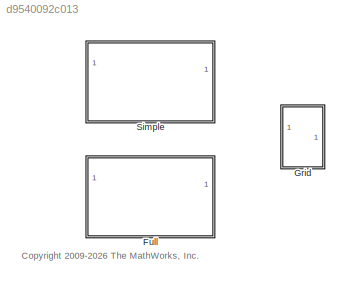
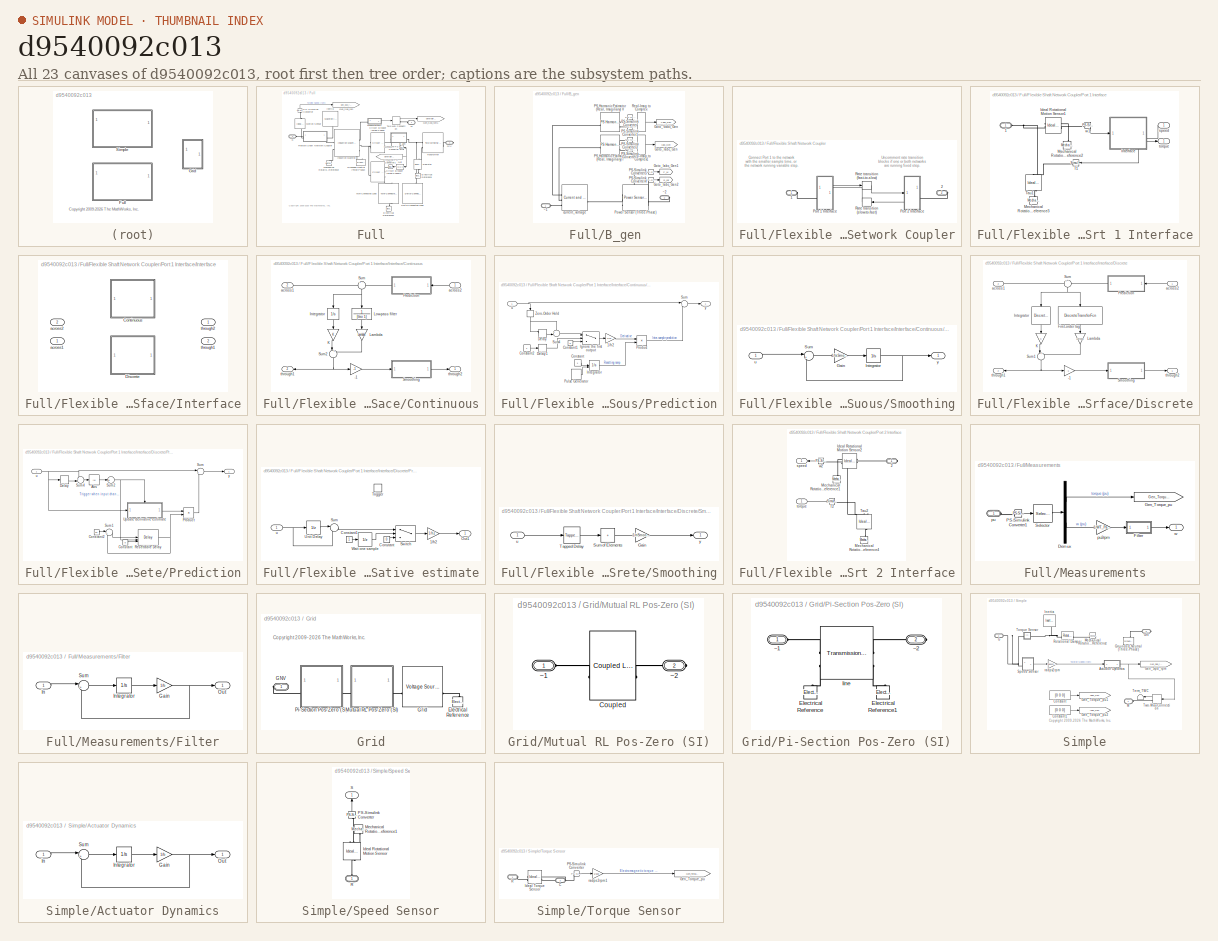
[diagram: thumbnail index - all 23 canvases of the model, root first then tree order]
MODEL slx_d9540092c013
KIND library
CONFIG EnableMultiTasking = on
CONFIG SolverName = ode45
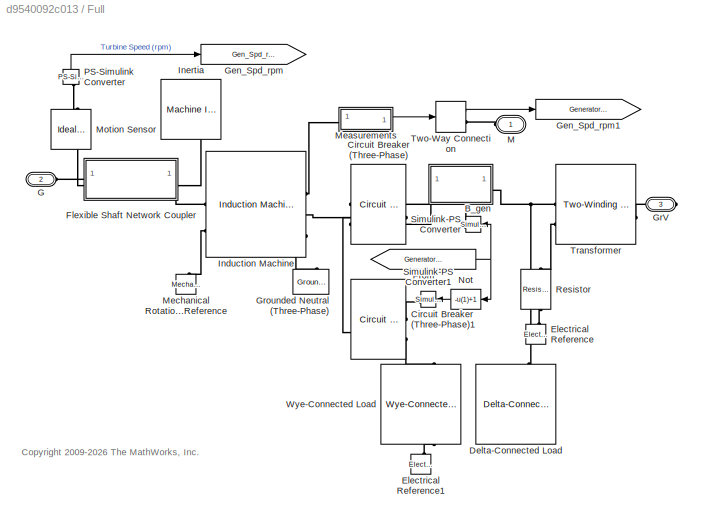
BLOCK [SubSystem] Full
  VariantControl = Full
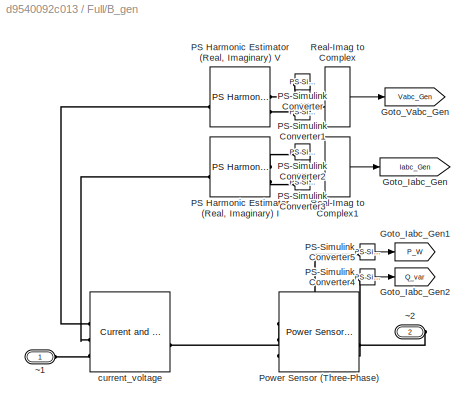
BLOCK [SubSystem] Full/B_gen 
  NameLocation = top
BLOCK [Goto] Full/B_gen /Goto_Iabc_Gen
  GotoTag = Iabc_Gen
  TagVisibility = global
BLOCK [Goto] Full/B_gen /Goto_Iabc_Gen1
  GotoTag = P_W
  TagVisibility = global
BLOCK [Goto] Full/B_gen /Goto_Iabc_Gen2
  GotoTag = Q_var
  TagVisibility = global
BLOCK [Goto] Full/B_gen /Goto_Vabc_Gen
  GotoTag = Vabc_Gen
  TagVisibility = global
BLOCK [Reference] Full/B_gen /PS Harmonic Estimator (Real, Imaginary) I  REF=fl_lib/Physical Signals/Periodic Operators/PS Harmonic
Estimator (Real,
Imaginary)
  SourceBlock = fl_lib/Physical Signals/Periodic Operators/PS Harmonic\nEstimator (Real,\nImaginary)
  SourceType = PS Harmonic\nEstimator (Real,\nImaginary)
BLOCK [Reference] Full/B_gen /PS Harmonic Estimator (Real, Imaginary) V  REF=fl_lib/Physical Signals/Periodic Operators/PS Harmonic
Estimator (Real,
Imaginary)
  NameLocation = top
  SourceBlock = fl_lib/Physical Signals/Periodic Operators/PS Harmonic\nEstimator (Real,\nImaginary)
  SourceType = PS Harmonic\nEstimator (Real,\nImaginary)
BLOCK [Reference] Full/B_gen /PS-Simulink Converter  REF=nesl_utility/PS-Simulink
Converter
  SourceBlock = nesl_utility/PS-Simulink\nConverter
  SourceType = PS-Simulink\nConverter
BLOCK [Reference] Full/B_gen /PS-Simulink Converter1  REF=nesl_utility/PS-Simulink
Converter
  SourceBlock = nesl_utility/PS-Simulink\nConverter
  SourceType = PS-Simulink\nConverter
BLOCK [Reference] Full/B_gen /PS-Simulink Converter2  REF=nesl_utility/PS-Simulink
Converter
  SourceBlock = nesl_utility/PS-Simulink\nConverter
  SourceType = PS-Simulink\nConverter
BLOCK [Reference] Full/B_gen /PS-Simulink Converter3  REF=nesl_utility/PS-Simulink
Converter
  SourceBlock = nesl_utility/PS-Simulink\nConverter
  SourceType = PS-Simulink\nConverter
BLOCK [Reference] Full/B_gen /PS-Simulink Converter4  REF=nesl_utility/PS-Simulink
Converter
  SourceBlock = nesl_utility/PS-Simulink\nConverter
  SourceType = PS-Simulink\nConverter
BLOCK [Reference] Full/B_gen /PS-Simulink Converter5  REF=nesl_utility/PS-Simulink
Converter
  SourceBlock = nesl_utility/PS-Simulink\nConverter
  SourceType = PS-Simulink\nConverter
BLOCK [Reference] Full/B_gen /Power Sensor (Three-Phase)  REF=ee_lib/Sensors &
Transducers/Power Sensor
(Three-Phase)
  SourceBlock = ee_lib/Sensors &\nTransducers/Power Sensor\n(Three-Phase)
  SourceType = Power Sensor\n(Three-Phase)
BLOCK [RealImagToComplex] Full/B_gen /Real-Imag to Complex
BLOCK [RealImagToComplex] Full/B_gen /Real-Imag to Complex1
  NameLocation = right
BLOCK [Reference] Full/B_gen /current_voltage  REF=ee_lib/Sensors &
Transducers/Current and Voltage
Sensor (Three-Phase)
  SourceBlock = ee_lib/Sensors &\nTransducers/Current and Voltage\nSensor (Three-Phase)
  SourceType = Current and Voltage\nSensor (Three-Phase)
BLOCK [PMIOPort] Full/B_gen /~1
  Side = Left
BLOCK [PMIOPort] Full/B_gen /~2
  Port = 2
  Side = Right
BLOCK [Reference] Full/Circuit Breaker (Three-Phase)  REF=ee_lib/Switches & Breakers/Circuit Breaker
(Three-Phase)
  SourceBlock = ee_lib/Switches & Breakers/Circuit Breaker\n(Three-Phase)
  SourceType = Circuit Breaker\n(Three-Phase)
BLOCK [Reference] Full/Circuit Breaker (Three-Phase)1  REF=ee_lib/Switches & Breakers/Circuit Breaker
(Three-Phase)
  NameLocation = top
  SourceBlock = ee_lib/Switches & Breakers/Circuit Breaker\n(Three-Phase)
  SourceType = Circuit Breaker\n(Three-Phase)
BLOCK [Reference] Full/Delta-Connected Load  REF=ee_lib/Passive/RLC Assemblies/Delta-Connected Load
  NameLocation = right
  SourceBlock = ee_lib/Passive/RLC Assemblies/Delta-Connected Load
  SourceType = Delta-Connected Load
BLOCK [Reference] Full/Electrical Reference  REF=fl_lib/Electrical/Electrical Elements/Electrical Reference
  NameLocation = right
  SourceBlock = fl_lib/Electrical/Electrical Elements/Electrical Reference
  SourceType = Electrical Reference
BLOCK [Reference] Full/Electrical Reference1  REF=fl_lib/Electrical/Electrical Elements/Electrical Reference
  NameLocation = right
  SourceBlock = fl_lib/Electrical/Electrical Elements/Electrical Reference
  SourceType = Electrical Reference
BLOCK [SubSystem] Full/Flexible Shaft Network Coupler
  OpenFcn = open_system(gcbh,'force')
BLOCK [PMIOPort] Full/Flexible Shaft Network Coupler/1
  Side = Left
BLOCK [PMIOPort] Full/Flexible Shaft Network Coupler/2
  Port = 2
  Side = Right
BLOCK [SubSystem] Full/Flexible Shaft Network Coupler/Port 1 Interface
  PortSchema = {"entries":[{"content":{"sides":[{"content":{"connectorIds":["LConn1"]},"type":"ConnectorPlacement.EquallySpacedRectSide","uuid":"a6d4a9fd-b5aa-40dc-ab7e-2b646b9b57bc"},{"content":{"connectorIds":["Out1","In1"],"side":"RIGHT"},"type":"ConnectorPlacement.EquallySpacedRectSide","uuid":"31bb6273-5b9b-48d0-a1a2-6fbacb979b97"},{"content":{"connectorIds":[],"side":"TOP"},"type":"ConnectorPlacement.Equal...<+249ch>
BLOCK [PMIOPort] Full/Flexible Shaft Network Coupler/Port 1 Interface/1
  Side = Left
BLOCK [Reference] Full/Flexible Shaft Network Coupler/Port 1 Interface/Ideal Rotational Motion Sensor1  REF=fl_lib/Mechanical/Mechanical Sensors/Ideal Rotational
Motion Sensor
  SourceBlock = fl_lib/Mechanical/Mechanical Sensors/Ideal Rotational\nMotion Sensor
  SourceType = Ideal Rotational\nMotion Sensor
BLOCK [SubSystem] Full/Flexible Shaft Network Coupler/Port 1 Interface/Interface
  LabelModeActiveChoice = Continuous
  PortSchema = {"entries":[{"content":{"sides":[{"content":{"connectorIds":["In1","Out2"]},"type":"ConnectorPlacement.EquallySpacedRectSide","uuid":"aa56821c-7799-44e3-b228-553c5b43a68d"},{"content":{"connectorIds":["In2","Out1"],"side":"RIGHT"},"type":"ConnectorPlacement.EquallySpacedRectSide","uuid":"8658dee5-55e2-4f33-bdec-e6600ce27fc1"},{"content":{"connectorIds":[],"side":"TOP"},"type":"ConnectorPlacement.E...<+253ch>
  Variant = on
  VariantControl = Variant1
  VariantControlMode = label
BLOCK [SubSystem] Full/Flexible Shaft Network Coupler/Port 1 Interface/Interface/Continuous
  VariantControl = Continuous
BLOCK [Gain] Full/Flexible Shaft Network Coupler/Port 1 Interface/Interface/Continuous/-1
  Gain = -1
  OutDataTypeStr = Inherit: Same as input
  ParamDataTypeStr = Inherit: Same as input
  SaturateOnIntegerOverflow = on
BLOCK [Integrator] Full/Flexible Shaft Network Coupler/Port 1 Interface/Interface/Continuous/Integrator
  InitialCondition = x0
  NameLocation = left
BLOCK [Gain] Full/Flexible Shaft Network Coupler/Port 1 Interface/Interface/Continuous/K
  Gain = K
  NameLocation = left
  OutDataTypeStr = Inherit: Same as input
  ParamDataTypeStr = Inherit: Same as input
  SaturateOnIntegerOverflow = on
BLOCK [Gain] Full/Flexible Shaft Network Coupler/Port 1 Interface/Interface/Continuous/Lambda
  Gain = Lambda
  NameLocation = right
  OutDataTypeStr = Inherit: Same as input
  ParamDataTypeStr = Inherit: Same as input
  SaturateOnIntegerOverflow = on
BLOCK [TransferFcn] Full/Flexible Shaft Network Coupler/Port 1 Interface/Interface/Continuous/Low-pass filter
  Denominator = [tau 1]
  NameLocation = right
  Numerator = 1
BLOCK [SubSystem] Full/Flexible Shaft Network Coupler/Port 1 Interface/Interface/Continuous/Prediction
  Commented = through
BLOCK [Gain] Full/Flexible Shaft Network Coupler/Port 1 Interface/Interface/Continuous/Prediction/1//h2
  Gain = 1/h2
BLOCK [Constant] Full/Flexible Shaft Network Coupler/Port 1 Interface/Interface/Continuous/Prediction/Constant
  SampleTime = h2
BLOCK [Constant] Full/Flexible Shaft Network Coupler/Port 1 Interface/Interface/Continuous/Prediction/Constant1
  SampleTime = h2
  Value = 0
BLOCK [Constant] Full/Flexible Shaft Network Coupler/Port 1 Interface/Interface/Continuous/Prediction/Constant2
  SampleTime = h2
BLOCK [Delay] Full/Flexible Shaft Network Coupler/Port 1 Interface/Interface/Continuous/Prediction/Delay 
  DelayLength = 1
  InputPortMap = u0
  SampleTime = h2
BLOCK [Delay] Full/Flexible Shaft Network Coupler/Port 1 Interface/Interface/Continuous/Prediction/Delay 1
  DelayLength = 1
  InputPortMap = u0
  SampleTime = h2
BLOCK [Switch] Full/Flexible Shaft Network Coupler/Port 1 Interface/Interface/Continuous/Prediction/Ignore the first output
  Criteria = u2 > Threshold
  InputSameDT = off
  SaturateOnIntegerOverflow = off
BLOCK [Integrator] Full/Flexible Shaft Network Coupler/Port 1 Interface/Interface/Continuous/Prediction/Integrator
  ExternalReset = either
  LimitOutput = on
  LowerSaturationLimit = 0
  UpperSaturationLimit = 1
BLOCK [Product] Full/Flexible Shaft Network Coupler/Port 1 Interface/Interface/Continuous/Prediction/Product
BLOCK [DiscretePulseGenerator] Full/Flexible Shaft Network Coupler/Port 1 Interface/Interface/Continuous/Prediction/Pulse Generator
  SampleTime = h2
BLOCK [Sum] Full/Flexible Shaft Network Coupler/Port 1 Interface/Interface/Continuous/Prediction/Sum
  Inputs = |++
BLOCK [Sum] Full/Flexible Shaft Network Coupler/Port 1 Interface/Interface/Continuous/Prediction/Sum4
  Inputs = +-|
BLOCK [ZeroOrderHold] Full/Flexible Shaft Network Coupler/Port 1 Interface/Interface/Continuous/Prediction/Zero-Order Hold
  NameLocation = right
  SampleTime = h2
BLOCK [Inport] Full/Flexible Shaft Network Coupler/Port 1 Interface/Interface/Continuous/Prediction/u
BLOCK [Outport] Full/Flexible Shaft Network Coupler/Port 1 Interface/Interface/Continuous/Prediction/y
BLOCK [SubSystem] Full/Flexible Shaft Network Coupler/Port 1 Interface/Interface/Continuous/Smoothing
  Commented = through
BLOCK [Gain] Full/Flexible Shaft Network Coupler/Port 1 Interface/Interface/Continuous/Smoothing/Gain
  Gain = 1/tsSmoothing
BLOCK [Integrator] Full/Flexible Shaft Network Coupler/Port 1 Interface/Interface/Continuous/Smoothing/Integrator
  InitialCondition = smoothing0
BLOCK [Sum] Full/Flexible Shaft Network Coupler/Port 1 Interface/Interface/Continuous/Smoothing/Sum
  Inputs = |+-
BLOCK [Inport] Full/Flexible Shaft Network Coupler/Port 1 Interface/Interface/Continuous/Smoothing/u
BLOCK [Outport] Full/Flexible Shaft Network Coupler/Port 1 Interface/Interface/Continuous/Smoothing/y
BLOCK [Sum] Full/Flexible Shaft Network Coupler/Port 1 Interface/Interface/Continuous/Sum
  InputSameDT = on
  Inputs = +-
  NameLocation = left
  OutDataTypeStr = Inherit: Same as first input
  SaturateOnIntegerOverflow = on
BLOCK [Sum] Full/Flexible Shaft Network Coupler/Port 1 Interface/Interface/Continuous/Sum2
  Inputs = |++
  NameLocation = left
BLOCK [Inport] Full/Flexible Shaft Network Coupler/Port 1 Interface/Interface/Continuous/across1
  Port = 2
BLOCK [Inport] Full/Flexible Shaft Network Coupler/Port 1 Interface/Interface/Continuous/across2
BLOCK [Outport] Full/Flexible Shaft Network Coupler/Port 1 Interface/Interface/Continuous/through1
  Port = 2
BLOCK [Outport] Full/Flexible Shaft Network Coupler/Port 1 Interface/Interface/Continuous/through2
BLOCK [SubSystem] Full/Flexible Shaft Network Coupler/Port 1 Interface/Interface/Discrete
  VariantControl = Discrete
BLOCK [Gain] Full/Flexible Shaft Network Coupler/Port 1 Interface/Interface/Discrete/-1
  Gain = -1
  OutDataTypeStr = Inherit: Same as input
  ParamDataTypeStr = Inherit: Same as input
  SaturateOnIntegerOverflow = on
BLOCK [DiscreteTransferFcn] Full/Flexible Shaft Network Coupler/Port 1 Interface/Interface/Discrete/First-order lag
  Denominator = [tau h1-tau]
  InputPortMap = u0
  NameLocation = right
  Numerator = h1
  SampleTime = h1
BLOCK [DiscreteIntegrator] Full/Flexible Shaft Network Coupler/Port 1 Interface/Interface/Discrete/Integrator
  ICPrevOutput = DiscIntNeverNeededParam
  ICPrevScaledInput = DiscIntNeverNeededParam
  InitialCondition = x0
  InitialConditionSetting = Auto
  NameLocation = left
  SampleTime = h1
BLOCK [Gain] Full/Flexible Shaft Network Coupler/Port 1 Interface/Interface/Discrete/K
  Gain = K
  NameLocation = left
  OutDataTypeStr = Inherit: Same as input
  ParamDataTypeStr = Inherit: Same as input
  SaturateOnIntegerOverflow = on
BLOCK [Gain] Full/Flexible Shaft Network Coupler/Port 1 Interface/Interface/Discrete/Lambda
  Gain = Lambda
  NameLocation = right
  OutDataTypeStr = Inherit: Same as input
  ParamDataTypeStr = Inherit: Same as input
  SaturateOnIntegerOverflow = on
BLOCK [SubSystem] Full/Flexible Shaft Network Coupler/Port 1 Interface/Interface/Discrete/Prediction
  Commented = through
BLOCK [Abs] Full/Flexible Shaft Network Coupler/Port 1 Interface/Interface/Discrete/Prediction/Abs
  SaturateOnIntegerOverflow = off
BLOCK [Constant] Full/Flexible Shaft Network Coupler/Port 1 Interface/Interface/Discrete/Prediction/Constant
  SampleTime = h1
  Value = 0
BLOCK [Constant] Full/Flexible Shaft Network Coupler/Port 1 Interface/Interface/Discrete/Prediction/Constant2
  SampleTime = h1
  Value = h1
BLOCK [Delay] Full/Flexible Shaft Network Coupler/Port 1 Interface/Interface/Discrete/Prediction/Delay 
  DelayLength = 1
  InputPortMap = u0
  SampleTime = h1
BLOCK [Product] Full/Flexible Shaft Network Coupler/Port 1 Interface/Interface/Discrete/Prediction/Product
BLOCK [Delay] Full/Flexible Shaft Network Coupler/Port 1 Interface/Interface/Discrete/Prediction/Resettable Delay
  DelayLength = 1
  ExternalReset = Rising
  InitialConditionSource = Input port
  InputPortMap = u0,r5,p4
  SampleTime = h1
BLOCK [Sum] Full/Flexible Shaft Network Coupler/Port 1 Interface/Interface/Discrete/Prediction/Sum
  Inputs = |++
BLOCK [Sum] Full/Flexible Shaft Network Coupler/Port 1 Interface/Interface/Discrete/Prediction/Sum1
  Inputs = |++
BLOCK [Sum] Full/Flexible Shaft Network Coupler/Port 1 Interface/Interface/Discrete/Prediction/Sum2
  Inputs = +
BLOCK [Sum] Full/Flexible Shaft Network Coupler/Port 1 Interface/Interface/Discrete/Prediction/Sum4
  Inputs = +-|
BLOCK [SubSystem] Full/Flexible Shaft Network Coupler/Port 1 Interface/Interface/Discrete/Prediction/Update derivative estimate
  TreatAsAtomicUnit = on
BLOCK [Gain] Full/Flexible Shaft Network Coupler/Port 1 Interface/Interface/Discrete/Prediction/Update derivative estimate/1//h2
  Gain = 1/h2
BLOCK [Constant] Full/Flexible Shaft Network Coupler/Port 1 Interface/Interface/Discrete/Prediction/Update derivative estimate/Constant
  SampleTime = -1
  Value = 0
BLOCK [Constant] Full/Flexible Shaft Network Coupler/Port 1 Interface/Interface/Discrete/Prediction/Update derivative estimate/Constant1
  SampleTime = -1
BLOCK [Outport] Full/Flexible Shaft Network Coupler/Port 1 Interface/Interface/Discrete/Prediction/Update derivative estimate/Out1
BLOCK [Sum] Full/Flexible Shaft Network Coupler/Port 1 Interface/Interface/Discrete/Prediction/Update derivative estimate/Sum
  Inputs = |-+
BLOCK [Switch] Full/Flexible Shaft Network Coupler/Port 1 Interface/Interface/Discrete/Prediction/Update derivative estimate/Switch
  Criteria = u2 > Threshold
  InputSameDT = off
  SaturateOnIntegerOverflow = off
BLOCK [TriggerPort] Full/Flexible Shaft Network Coupler/Port 1 Interface/Interface/Discrete/Prediction/Update derivative estimate/Trigger
  StatesWhenEnabling = held
  VariantControl = (inherit)
BLOCK [UnitDelay] Full/Flexible Shaft Network Coupler/Port 1 Interface/Interface/Discrete/Prediction/Update derivative estimate/Unit Delay
  SampleTime = -1
BLOCK [UnitDelay] Full/Flexible Shaft Network Coupler/Port 1 Interface/Interface/Discrete/Prediction/Update derivative estimate/Wait one sample
  SampleTime = -1
BLOCK [Inport] Full/Flexible Shaft Network Coupler/Port 1 Interface/Interface/Discrete/Prediction/Update derivative estimate/u
BLOCK [Inport] Full/Flexible Shaft Network Coupler/Port 1 Interface/Interface/Discrete/Prediction/u
BLOCK [Outport] Full/Flexible Shaft Network Coupler/Port 1 Interface/Interface/Discrete/Prediction/y
BLOCK [SubSystem] Full/Flexible Shaft Network Coupler/Port 1 Interface/Interface/Discrete/Smoothing
  Commented = through
BLOCK [Gain] Full/Flexible Shaft Network Coupler/Port 1 Interface/Interface/Discrete/Smoothing/Gain
  Gain = 1/nSmooth
BLOCK [Sum] Full/Flexible Shaft Network Coupler/Port 1 Interface/Interface/Discrete/Smoothing/Sum of Elements
  IconShape = rectangular
  Inputs = +
BLOCK [Reference] Full/Flexible Shaft Network Coupler/Port 1 Interface/Interface/Discrete/Smoothing/Tapped Delay  REF=simulink/Discrete/Tapped Delay
  SourceBlock = simulink/Discrete/Tapped Delay
  SourceType = Tapped Delay Line
BLOCK [Inport] Full/Flexible Shaft Network Coupler/Port 1 Interface/Interface/Discrete/Smoothing/u
BLOCK [Outport] Full/Flexible Shaft Network Coupler/Port 1 Interface/Interface/Discrete/Smoothing/y
BLOCK [Sum] Full/Flexible Shaft Network Coupler/Port 1 Interface/Interface/Discrete/Sum
  InputSameDT = on
  Inputs = +-
  NameLocation = left
  OutDataTypeStr = Inherit: Same as first input
  SaturateOnIntegerOverflow = on
BLOCK [Sum] Full/Flexible Shaft Network Coupler/Port 1 Interface/Interface/Discrete/Sum1
  Inputs = |++
  NameLocation = left
BLOCK [Inport] Full/Flexible Shaft Network Coupler/Port 1 Interface/Interface/Discrete/across1
  Port = 2
BLOCK [Inport] Full/Flexible Shaft Network Coupler/Port 1 Interface/Interface/Discrete/across2
BLOCK [Outport] Full/Flexible Shaft Network Coupler/Port 1 Interface/Interface/Discrete/through1
  Port = 2
BLOCK [Outport] Full/Flexible Shaft Network Coupler/Port 1 Interface/Interface/Discrete/through2
BLOCK [Inport] Full/Flexible Shaft Network Coupler/Port 1 Interface/Interface/across1
BLOCK [Inport] Full/Flexible Shaft Network Coupler/Port 1 Interface/Interface/across2
  Port = 2
BLOCK [Outport] Full/Flexible Shaft Network Coupler/Port 1 Interface/Interface/through1
  Port = 2
BLOCK [Outport] Full/Flexible Shaft Network Coupler/Port 1 Interface/Interface/through2
BLOCK [Reference] Full/Flexible Shaft Network Coupler/Port 1 Interface/Mechanical Rotational Reference2  REF=fl_lib/Mechanical/Rotational Elements/Mechanical
Rotational Reference
  NameLocation = right
  SourceBlock = fl_lib/Mechanical/Rotational Elements/Mechanical\nRotational Reference
  SourceType = Mechanical\nRotational Reference
BLOCK [Reference] Full/Flexible Shaft Network Coupler/Port 1 Interface/Mechanical Rotational Reference3  REF=fl_lib/Mechanical/Rotational Elements/Mechanical
Rotational Reference
  NameLocation = right
  SourceBlock = fl_lib/Mechanical/Rotational Elements/Mechanical\nRotational Reference
  SourceType = Mechanical\nRotational Reference
BLOCK [Reference] Full/Flexible Shaft Network Coupler/Port 1 Interface/T1  REF=nesl_utility/Simulink-PS
Converter
  SourceBlock = nesl_utility/Simulink-PS\nConverter
  SourceType = Simulink-PS\nConverter
BLOCK [Reference] Full/Flexible Shaft Network Coupler/Port 1 Interface/Tau1  REF=fl_lib/Mechanical/Mechanical Sources/Ideal Torque Source
  NameLocation = left
  SourceBlock = fl_lib/Mechanical/Mechanical Sources/Ideal Torque Source
  SourceType = Ideal Torque Source
BLOCK [Inport] Full/Flexible Shaft Network Coupler/Port 1 Interface/speed
BLOCK [Outport] Full/Flexible Shaft Network Coupler/Port 1 Interface/torque
BLOCK [Reference] Full/Flexible Shaft Network Coupler/Port 1 Interface/w1  REF=nesl_utility/PS-Simulink
Converter
  SourceBlock = nesl_utility/PS-Simulink\nConverter
  SourceType = PS-Simulink\nConverter
BLOCK [SubSystem] Full/Flexible Shaft Network Coupler/Port 2 Interface
  PortSchema = {"entries":[{"content":{"sides":[{"content":{"connectorIds":["In1","Out1"]},"type":"ConnectorPlacement.EquallySpacedRectSide","uuid":"5a4c1550-e77d-42df-bf3e-b81963920de7"},{"content":{"connectorIds":["RConn1"],"side":"RIGHT"},"type":"ConnectorPlacement.EquallySpacedRectSide","uuid":"3fd730f7-5937-4563-a365-595aaae9027b"},{"content":{"connectorIds":[],"side":"TOP"},"type":"ConnectorPlacement.Equal...<+249ch>
BLOCK [PMIOPort] Full/Flexible Shaft Network Coupler/Port 2 Interface/2
  Side = Right
BLOCK [Reference] Full/Flexible Shaft Network Coupler/Port 2 Interface/Ideal Rotational Motion Sensor2  REF=fl_lib/Mechanical/Mechanical Sensors/Ideal Rotational
Motion Sensor
  SourceBlock = fl_lib/Mechanical/Mechanical Sensors/Ideal Rotational\nMotion Sensor
  SourceType = Ideal Rotational\nMotion Sensor
BLOCK [Reference] Full/Flexible Shaft Network Coupler/Port 2 Interface/Mechanical Rotational Reference1  REF=fl_lib/Mechanical/Rotational Elements/Mechanical
Rotational Reference
  NameLocation = right
  SourceBlock = fl_lib/Mechanical/Rotational Elements/Mechanical\nRotational Reference
  SourceType = Mechanical\nRotational Reference
BLOCK [Reference] Full/Flexible Shaft Network Coupler/Port 2 Interface/Mechanical Rotational Reference4  REF=fl_lib/Mechanical/Rotational Elements/Mechanical
Rotational Reference
  NameLocation = right
  SourceBlock = fl_lib/Mechanical/Rotational Elements/Mechanical\nRotational Reference
  SourceType = Mechanical\nRotational Reference
BLOCK [Reference] Full/Flexible Shaft Network Coupler/Port 2 Interface/T2  REF=nesl_utility/Simulink-PS
Converter
  SourceBlock = nesl_utility/Simulink-PS\nConverter
  SourceType = Simulink-PS\nConverter
BLOCK [Reference] Full/Flexible Shaft Network Coupler/Port 2 Interface/Tau2  REF=fl_lib/Mechanical/Mechanical Sources/Ideal Torque Source
  NameLocation = right
  SourceBlock = fl_lib/Mechanical/Mechanical Sources/Ideal Torque Source
  SourceType = Ideal Torque Source
BLOCK [Outport] Full/Flexible Shaft Network Coupler/Port 2 Interface/speed
BLOCK [Inport] Full/Flexible Shaft Network Coupler/Port 2 Interface/torque
BLOCK [Reference] Full/Flexible Shaft Network Coupler/Port 2 Interface/w2  REF=nesl_utility/PS-Simulink
Converter
  SourceBlock = nesl_utility/PS-Simulink\nConverter
  SourceType = PS-Simulink\nConverter
BLOCK [RateTransition] Full/Flexible Shaft Network Coupler/Rate transition (fast-to-slow)
  Commented = through
  Integrity = off
  NameLocation = top
BLOCK [RateTransition] Full/Flexible Shaft Network Coupler/Rate transition (slow-to-fast)
  Commented = through
  Integrity = off
BLOCK [From] Full/From
  GotoTag = Generator_Trip
  TagVisibility = global
BLOCK [PMIOPort] Full/G
  NameLocation = top
  Port = 2
  Side = Left
BLOCK [Goto] Full/Gen_Spd_rpm
  GotoTag = Gen_Spd_rpm
  TagVisibility = global
BLOCK [Goto] Full/Gen_Spd_rpm1
  GotoTag = Generator_Trip
  TagVisibility = global
BLOCK [PMIOPort] Full/GrV
  Port = 3
  Side = Right
BLOCK [Reference] Full/Grounded Neutral (Three-Phase)  REF=ee_lib/Connectors &
References/Grounded Neutral
(Three-Phase)
  SourceBlock = ee_lib/Connectors &\nReferences/Grounded Neutral\n(Three-Phase)
  SourceType = Grounded Neutral\n(Three-Phase)
BLOCK [Reference] Full/Induction Machine  REF=ee_lib/Electromechanical/Asynchronous/Induction Machine
Squirrel Cage
  SourceBlock = ee_lib/Electromechanical/Asynchronous/Induction Machine\nSquirrel Cage
  SourceType = Induction Machine\nSquirrel Cage
BLOCK [Reference] Full/Inertia  REF=ee_lib/Electromechanical/Mechanical/Machine
Inertia
  NameLocation = right
  SourceBlock = ee_lib/Electromechanical/Mechanical/Machine\nInertia
  SourceType = Machine\nInertia
BLOCK [PMIOPort] Full/M
  Side = Left
  Tag = PMCPort
BLOCK [SubSystem] Full/Measurements
  NameLocation = top
BLOCK [Demux] Full/Measurements/Demux
  Outputs = 2
BLOCK [SubSystem] Full/Measurements/Filter
BLOCK [Gain] Full/Measurements/Filter/Gain
  Gain = 1/b
BLOCK [Inport] Full/Measurements/Filter/In
BLOCK [Integrator] Full/Measurements/Filter/Integrator
  InitialCondition = x_initial
BLOCK [Outport] Full/Measurements/Filter/Out
  VectorParamsAs1DForOutWhenUnconnected = off
BLOCK [Sum] Full/Measurements/Filter/Sum
  InputSameDT = on
  Inputs = |+-
  OutDataTypeStr = Inherit: Same as first input
  SaturateOnIntegerOverflow = on
BLOCK [Goto] Full/Measurements/Gen_Torque_pu
  GotoTag = Gen_Torque_pu
  TagVisibility = global
BLOCK [Reference] Full/Measurements/PS-Simulink Converter1  REF=nesl_utility/PS-Simulink
Converter
  SourceBlock = nesl_utility/PS-Simulink\nConverter
  SourceType = PS-Simulink\nConverter
BLOCK [Selector] Full/Measurements/Selector
  IndexOptions = Index vector (dialog)
  Indices = [1 2]
  InputPortWidth = 8
  OutputSizes = 1
BLOCK [PMIOPort] Full/Measurements/pu
  Side = Left
BLOCK [Gain] Full/Measurements/pu2rpm
  Gain = 1/WT_Params.Generator.radps2pu*radps2rpm
BLOCK [Outport] Full/Measurements/w
BLOCK [Reference] Full/Mechanical Rotational Reference  REF=fl_lib/Mechanical/Rotational Elements/Mechanical
Rotational Reference
  NameLocation = left
  SourceBlock = fl_lib/Mechanical/Rotational Elements/Mechanical\nRotational Reference
  SourceType = Mechanical\nRotational Reference
BLOCK [Reference] Full/Motion Sensor  REF=fl_lib/Mechanical/Mechanical Sensors/Ideal Rotational
Motion Sensor
  NameLocation = right
  SourceBlock = fl_lib/Mechanical/Mechanical Sensors/Ideal Rotational\nMotion Sensor
  SourceType = Ideal Rotational\nMotion Sensor
BLOCK [Fcn] Full/Not
  Expr = -u(1)+1
BLOCK [Reference] Full/PS-Simulink Converter  REF=nesl_utility/PS-Simulink
Converter
  NameLocation = right
  SourceBlock = nesl_utility/PS-Simulink\nConverter
  SourceType = PS-Simulink\nConverter
BLOCK [Reference] Full/Resistor  REF=fl_lib/Electrical/Electrical Elements/Resistor
  NameLocation = right
  SourceBlock = fl_lib/Electrical/Electrical Elements/Resistor
  SourceType = Resistor
BLOCK [Reference] Full/Simulink-PS Converter  REF=nesl_utility/Simulink-PS
Converter
  SourceBlock = nesl_utility/Simulink-PS\nConverter
  SourceType = Simulink-PS\nConverter
BLOCK [Reference] Full/Simulink-PS Converter1  REF=nesl_utility/Simulink-PS
Converter
  NameLocation = top
  SourceBlock = nesl_utility/Simulink-PS\nConverter
  SourceType = Simulink-PS\nConverter
BLOCK [Reference] Full/Transformer  REF=ee_lib/Passive/Transformers/Two-Winding
Transformer
(Three-Phase)
  SourceBlock = ee_lib/Passive/Transformers/Two-Winding\nTransformer\n(Three-Phase)
  SourceType = Two-Winding\nTransformer\n(Three-Phase)
BLOCK [TwoWayConnection] Full/Two-Way Connection
  NameLocation = top
BLOCK [Reference] Full/Wye-Connected Load  REF=ee_lib/Passive/RLC Assemblies/Wye-Connected Load
  NameLocation = left
  SourceBlock = ee_lib/Passive/RLC Assemblies/Wye-Connected Load
  SourceType = Wye-Connected Load
BLOCK [SubSystem] Grid
  NameLocation = top
BLOCK [Reference] Grid/Electrical Reference  REF=fl_lib/Electrical/Electrical Elements/Electrical Reference
  NameLocation = right
  SourceBlock = fl_lib/Electrical/Electrical Elements/Electrical Reference
  SourceType = Electrical Reference
BLOCK [PMIOPort] Grid/GNV
  Side = Right
BLOCK [Reference] Grid/Grid  REF=ee_lib/Sources/Voltage
Source
(Three-Phase)
  SourceBlock = ee_lib/Sources/Voltage\nSource\n(Three-Phase)
  SourceType = Voltage\nSource\n(Three-Phase)
BLOCK [SubSystem] Grid/Mutual RL Pos-Zero (SI)
BLOCK [Reference] Grid/Mutual RL Pos-Zero (SI)/Coupled  REF=ee_lib/Passive/Lines/Coupled Lines
(Three-Phase)
  SourceBlock = ee_lib/Passive/Lines/Coupled Lines\n(Three-Phase)
  SourceType = Coupled Lines\n(Three-Phase)
BLOCK [PMIOPort] Grid/Mutual RL Pos-Zero (SI)/~1
  Side = Left
BLOCK [PMIOPort] Grid/Mutual RL Pos-Zero (SI)/~2
  Port = 2
  Side = Right
BLOCK [SubSystem] Grid/Pi-Section Pos-Zero (SI)
BLOCK [Reference] Grid/Pi-Section Pos-Zero (SI)/Electrical Reference  REF=fl_lib/Electrical/Electrical Elements/Electrical Reference
  NameLocation = right
  SourceBlock = fl_lib/Electrical/Electrical Elements/Electrical Reference
  SourceType = Electrical Reference
BLOCK [Reference] Grid/Pi-Section Pos-Zero (SI)/Electrical Reference1  REF=fl_lib/Electrical/Electrical Elements/Electrical Reference
  NameLocation = right
  SourceBlock = fl_lib/Electrical/Electrical Elements/Electrical Reference
  SourceType = Electrical Reference
BLOCK [Reference] Grid/Pi-Section Pos-Zero (SI)/line  REF=ee_lib/Passive/Lines/Transmission
Line
(Three-Phase)
  SourceBlock = ee_lib/Passive/Lines/Transmission\nLine\n(Three-Phase)
  SourceType = Transmission\nLine\n(Three-Phase)
BLOCK [PMIOPort] Grid/Pi-Section Pos-Zero (SI)/~1
  Side = Left
BLOCK [PMIOPort] Grid/Pi-Section Pos-Zero (SI)/~2
  Port = 2
  Side = Right
BLOCK [SubSystem] Simple
  VariantControl = Simple
BLOCK [SubSystem] Simple/Actuator Dynamics
BLOCK [Gain] Simple/Actuator Dynamics/Gain
  Gain = 1/b
BLOCK [Inport] Simple/Actuator Dynamics/In
BLOCK [Integrator] Simple/Actuator Dynamics/Integrator
  InitialCondition = x_initial
BLOCK [Outport] Simple/Actuator Dynamics/Out
  VectorParamsAs1DForOutWhenUnconnected = off
BLOCK [Sum] Simple/Actuator Dynamics/Sum
  InputSameDT = on
  Inputs = |+-
  OutDataTypeStr = Inherit: Same as first input
  SaturateOnIntegerOverflow = on
BLOCK [Constant] Simple/Constant
  OutDataTypeStr = Inherit: Inherit via back propagation
  Value = [0 0 0]
BLOCK [Constant] Simple/Constant1
  OutDataTypeStr = Inherit: Inherit via back propagation
  Value = [0 0 0]
BLOCK [PMIOPort] Simple/G
  NameLocation = top
  Port = 2
  Side = Left
BLOCK [Goto] Simple/Gen_Spd_rpm
  GotoTag = Gen_Spd_rpm
  TagVisibility = global
BLOCK [Goto] Simple/Gen_Torque_pu1
  GotoTag = Vabc_Gen
  TagVisibility = global
BLOCK [Goto] Simple/Gen_Torque_pu2
  GotoTag = Iabc_Gen
  TagVisibility = global
BLOCK [PMIOPort] Simple/GrV
  Port = 3
  Side = Right
BLOCK [Reference] Simple/Grounded Neutral (Three-Phase)  REF=ee_lib/Connectors &
References/Grounded Neutral
(Three-Phase)
  NameLocation = right
  SourceBlock = ee_lib/Connectors &\nReferences/Grounded Neutral\n(Three-Phase)
  SourceType = Grounded Neutral\n(Three-Phase)
BLOCK [Reference] Simple/Inertia  REF=fl_lib/Mechanical/Rotational Elements/Inertia
  NameLocation = left
  SourceBlock = fl_lib/Mechanical/Rotational Elements/Inertia
  SourceType = Inertia
BLOCK [PMIOPort] Simple/M
  Side = Left
  Tag = PMCPort
BLOCK [Reference] Simple/Mechanical Rotational Reference  REF=fl_lib/Mechanical/Rotational Elements/Mechanical
Rotational Reference
  NameLocation = top
  SourceBlock = fl_lib/Mechanical/Rotational Elements/Mechanical\nRotational Reference
  SourceType = Mechanical\nRotational Reference
BLOCK [Reference] Simple/Rotational Damper  REF=fl_lib/Mechanical/Rotational Elements/Rotational Damper
  SourceBlock = fl_lib/Mechanical/Rotational Elements/Rotational Damper
  SourceType = Rotational Damper
BLOCK [SubSystem] Simple/Speed Sensor
BLOCK [Reference] Simple/Speed Sensor/Ideal Rotational Motion Sensor  REF=fl_lib/Mechanical/Mechanical Sensors/Ideal Rotational
Motion Sensor
  NameLocation = right
  SourceBlock = fl_lib/Mechanical/Mechanical Sensors/Ideal Rotational\nMotion Sensor
  SourceType = Ideal Rotational\nMotion Sensor
BLOCK [Reference] Simple/Speed Sensor/Mechanical Rotational Reference1  REF=fl_lib/Mechanical/Rotational Elements/Mechanical
Rotational Reference
  NameLocation = left
  SourceBlock = fl_lib/Mechanical/Rotational Elements/Mechanical\nRotational Reference
  SourceType = Mechanical\nRotational Reference
BLOCK [Reference] Simple/Speed Sensor/PS-Simulink Converter  REF=nesl_utility/PS-Simulink
Converter
  NameLocation = left
  SourceBlock = nesl_utility/PS-Simulink\nConverter
  SourceType = PS-Simulink\nConverter
BLOCK [PMIOPort] Simple/Speed Sensor/R
  NameLocation = right
  Side = Left
BLOCK [Outport] Simple/Speed Sensor/S
  NameLocation = right
  VectorParamsAs1DForOutWhenUnconnected = off
BLOCK [Terminator] Simple/Term_TWC
  NameLocation = top
BLOCK [SubSystem] Simple/Torque Sensor
BLOCK [PMIOPort] Simple/Torque Sensor/C
  Port = 2
  Side = Right
BLOCK [Goto] Simple/Torque Sensor/Gen_Torque_pu
  GotoTag = Gen_Torque_pu
  TagVisibility = global
BLOCK [Reference] Simple/Torque Sensor/Ideal Torque Sensor  REF=fl_lib/Mechanical/Mechanical Sensors/Ideal Torque Sensor
  SourceBlock = fl_lib/Mechanical/Mechanical Sensors/Ideal Torque Sensor
  SourceType = Ideal Torque Sensor
BLOCK [Reference] Simple/Torque Sensor/PS-Simulink Converter  REF=nesl_utility/PS-Simulink
Converter
  SourceBlock = nesl_utility/PS-Simulink\nConverter
  SourceType = PS-Simulink\nConverter
BLOCK [PMIOPort] Simple/Torque Sensor/R
  Side = Left
BLOCK [Gain] Simple/Torque Sensor/radps2rpm1
  Gain = 1/500
  NameLocation = top
BLOCK [TwoWayConnection] Simple/Two-Way Connection
BLOCK [Gain] Simple/radps2rpm
  Gain = radps2rpm
ANNOTATION (root): <copyright redacted>
ANNOTATION Full: <copyright redacted>
ANNOTATION Full/Flexible Shaft Network Coupler: Connect Port 1 to the network with the smaller sample time, or the network running variable step.
ANNOTATION Full/Flexible Shaft Network Coupler: Uncomment rate transition blocks if one or both networks are running fixed step.
ANNOTATION Grid: <copyright redacted>
ANNOTATION Simple: <copyright redacted>
NET Full/From:1 -> Full/Not:1, Full/Simulink-PS Converter:1
LINE Full/Measurements/Demux:1 -> Full/Measurements/Gen_Torque_pu:1
LINE Full/Measurements/Demux:2 -> Full/Measurements/pu2rpm:1
NET Full/Measurements/Filter/Gain:1 -> Full/Measurements/Filter/Out:1, Full/Measurements/Filter/Sum:2
LINE Full/Measurements/Filter/In:1 -> Full/Measurements/Filter/Sum:1
LINE Full/Measurements/Filter/Integrator:1 -> Full/Measurements/Filter/Gain:1
LINE Full/Measurements/Filter/Sum:1 -> Full/Measurements/Filter/Integrator:1
LINE Full/Measurements/Filter:1 -> Full/Measurements/w:1
LINE Full/Measurements/PS-Simulink Converter1:1 -> Full/Measurements/Selector:1
LINE Full/Measurements/Selector:1 -> Full/Measurements/Demux:1
LINE Full/Measurements/pu2rpm:1 -> Full/Measurements/Filter:1
LINE Full/Measurements:1 -> Full/Two-Way Connection:1
LINE Full/Not:1 -> Full/Simulink-PS Converter1:1
LINE Full/PS-Simulink Converter:1 -> Full/Gen_Spd_rpm:1
LINE Full/Two-Way Connection:1 -> Full/Gen_Spd_rpm1:1
NET Simple/Actuator Dynamics/Gain:1 -> Simple/Actuator Dynamics/Out:1, Simple/Actuator Dynamics/Sum:2
LINE Simple/Actuator Dynamics/In:1 -> Simple/Actuator Dynamics/Sum:1
LINE Simple/Actuator Dynamics/Integrator:1 -> Simple/Actuator Dynamics/Gain:1
LINE Simple/Actuator Dynamics/Sum:1 -> Simple/Actuator Dynamics/Integrator:1
NET Simple/Actuator Dynamics:1 -> Simple/Gen_Spd_rpm:1, Simple/Two-Way Connection:1
LINE Simple/Constant1:1 -> Simple/Gen_Torque_pu2:1
LINE Simple/Constant:1 -> Simple/Gen_Torque_pu1:1
LINE Simple/Speed Sensor/PS-Simulink Converter:1 -> Simple/Speed Sensor/S:1
LINE Simple/Speed Sensor:1 -> Simple/radps2rpm:1
LINE Simple/Torque Sensor/PS-Simulink Converter:1 -> Simple/Torque Sensor/radps2rpm1:1
LINE Simple/Torque Sensor/radps2rpm1:1 -> Simple/Torque Sensor/Gen_Torque_pu:1
LINE Simple/Two-Way Connection:1 -> Simple/Term_TWC:1
LINE Simple/radps2rpm:1 -> Simple/Actuator Dynamics:1
PLINE Full/B_gen :LConn1 -- Full/Circuit Breaker (Three-Phase):LConn2
PNET net1: Full/B_gen :RConn1 -- Full/Delta-Connected Load:LConn1 -- Full/Transformer:RConn1
PLINE Full/Circuit Breaker (Three-Phase)1:LConn1 -- Full/Simulink-PS Converter1:RConn1
PLINE Full/Circuit Breaker (Three-Phase)1:LConn2 -- Full/Wye-Connected Load:LConn1
PNET net2: Full/Circuit Breaker (Three-Phase)1:RConn1 -- Full/Circuit Breaker (Three-Phase):RConn1 -- Full/Induction Machine:RConn2
PLINE Full/Circuit Breaker (Three-Phase):LConn1 -- Full/Simulink-PS Converter:RConn1
PLINE Full/Electrical Reference1:LConn1 -- Full/Wye-Connected Load:RConn1
PLINE Full/Electrical Reference:LConn1 -- Full/Resistor:LConn1
PNET net3: Full/Flexible Shaft Network Coupler:LConn1 -- Full/G:RConn1 -- Full/Motion Sensor:LConn1
PNET net4: Full/Flexible Shaft Network Coupler:RConn1 -- Full/Induction Machine:LConn1 -- Full/Inertia:LConn1
PLINE Full/GrV:RConn1 -- Full/Transformer:LConn1
PLINE Full/Grounded Neutral (Three-Phase):LConn1 -- Full/Induction Machine:RConn3
PLINE Full/Induction Machine:LConn2 -- Full/Mechanical Rotational Reference:LConn1
PLINE Full/Induction Machine:RConn1 -- Full/Measurements:LConn1
PLINE Full/M:RConn1 -- Full/Two-Way Connection:RConn1
PLINE Full/Measurements/PS-Simulink Converter1:LConn1 -- Full/Measurements/pu:RConn1
PLINE Full/Motion Sensor:RConn1 -- Full/PS-Simulink Converter:LConn1
PLINE Full/Resistor:RConn1 -- Full/Transformer:RConn2
PLINE Grid/Electrical Reference:LConn1 -- Grid/Grid:LConn1
PLINE Grid/GNV:RConn1 -- Grid/Pi-Section Pos-Zero (SI):LConn1
PLINE Grid/Grid:RConn1 -- Grid/Mutual RL Pos-Zero (SI):RConn1
PLINE Grid/Mutual RL Pos-Zero (SI):LConn1 -- Grid/Pi-Section Pos-Zero (SI):RConn1
PNET net5: Simple/G:RConn1 -- Simple/Speed Sensor:LConn1 -- Simple/Torque Sensor:LConn1
PLINE Simple/GrV:RConn1 -- Simple/Grounded Neutral (Three-Phase):LConn1
PNET net6: Simple/Inertia:LConn1 -- Simple/Rotational Damper:LConn1 -- Simple/Torque Sensor:RConn1
PLINE Simple/M:RConn1 -- Simple/Two-Way Connection:RConn1
PLINE Simple/Mechanical Rotational Reference:LConn1 -- Simple/Rotational Damper:RConn1
PLINE Simple/Speed Sensor/Ideal Rotational Motion Sensor:LConn1 -- Simple/Speed Sensor/R:RConn1
PLINE Simple/Speed Sensor/Ideal Rotational Motion Sensor:RConn1 -- Simple/Speed Sensor/Mechanical Rotational Reference1:LConn1
PLINE Simple/Speed Sensor/Ideal Rotational Motion Sensor:RConn2 -- Simple/Speed Sensor/PS-Simulink Converter:LConn1
PLINE Simple/Torque Sensor/C:RConn1 -- Simple/Torque Sensor/Ideal Torque Sensor:RConn1
PLINE Simple/Torque Sensor/Ideal Torque Sensor:LConn1 -- Simple/Torque Sensor/R:RConn1
PLINE Simple/Torque Sensor/Ideal Torque Sensor:RConn2 -- Simple/Torque Sensor/PS-Simulink Converter:LConn1
note: NET lines group one-source signal fan-out (src -> all destinations, sorted); 1:1 wires keep LINE; PNET lines group multi-terminal physical nets as a canonical sorted terminal list (undirected conserving connections); 2-terminal nets keep the pairwise PLINE form
